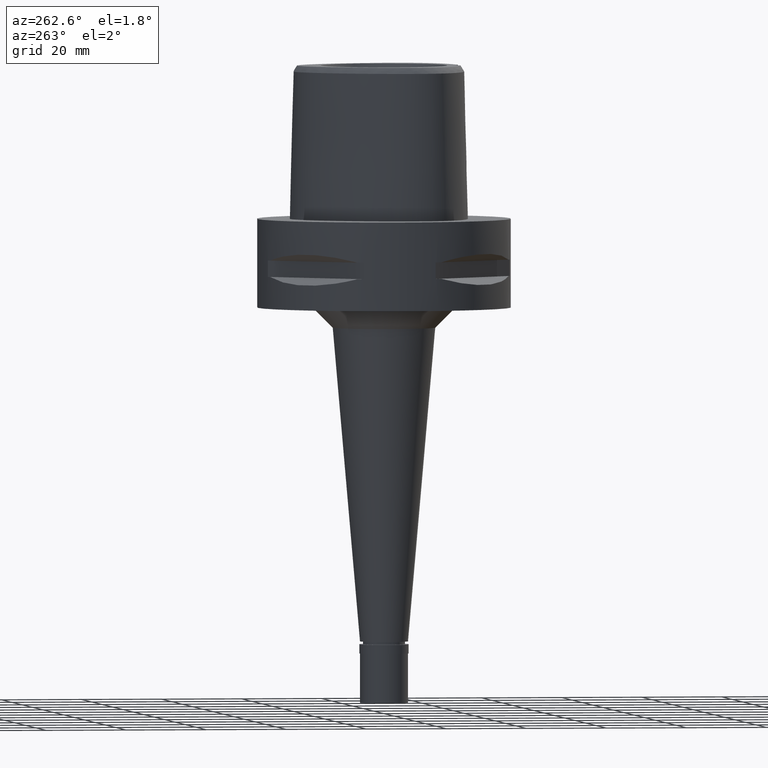
[diagram: clean part render]
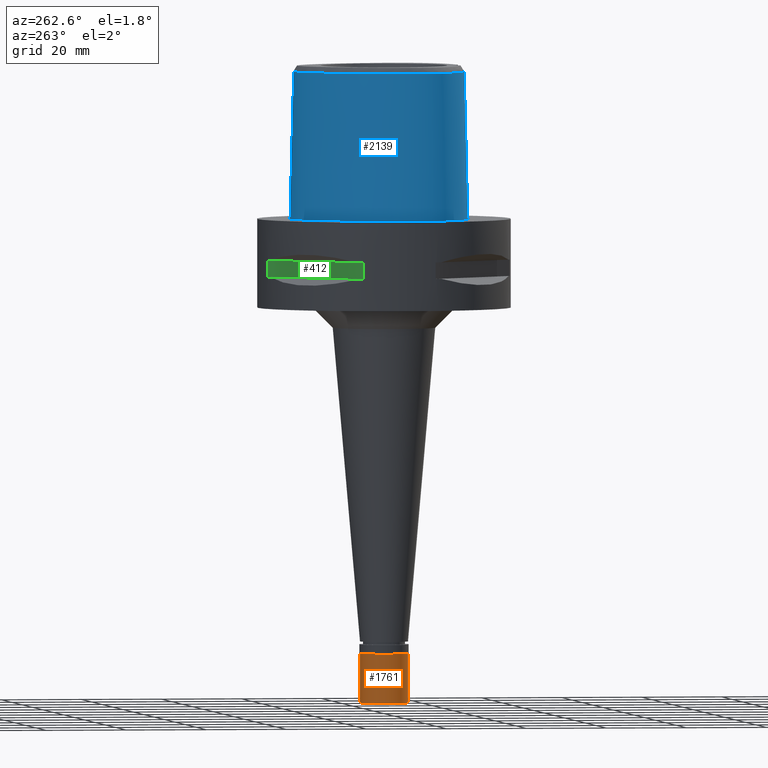
[diagram: same view with three faces highlighted in distinct colors, each labeled with its STEP entity id]
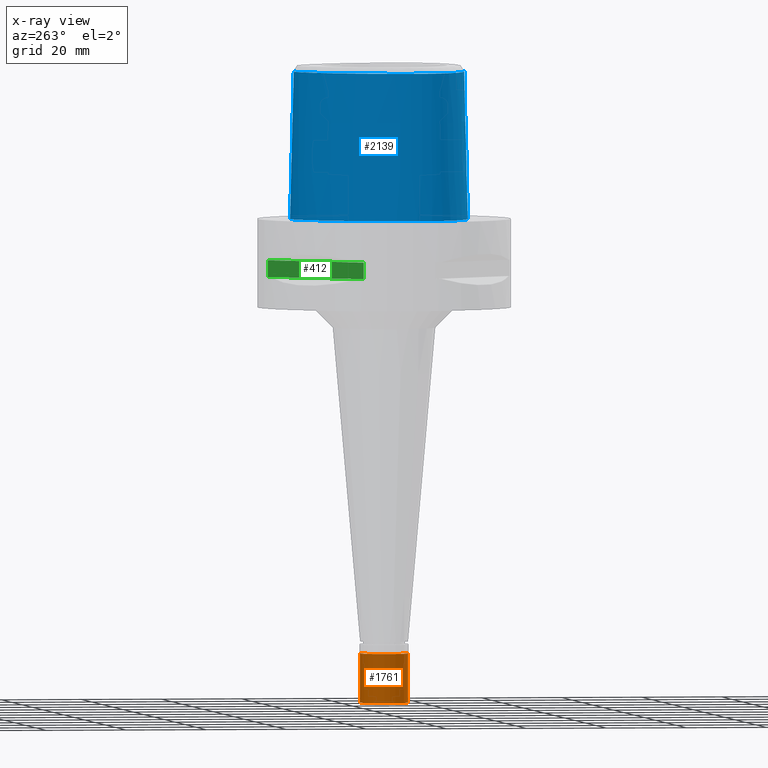
[diagram: x-ray of the same camera — body ghosted, the three highlighted faces saturated]
A machine part, auxiliary view with three faces highlighted in distinct colors.
The next image is the same camera in x-ray (body ghosted, the three faces saturated) — at least one of them is partly hidden behind the body in this view.
Their STEP definitions:

[orange] entity #1761 — the highlighted cylindrical surface (edge-blend (fillet) strip) has radius 6 mm, axis along (0, 0, 1).
#137 = AXIS2_PLACEMENT_3D ( 'NONE', #4320, #3934, #4111 ) ;
#285 = FACE_OUTER_BOUND ( 'NONE', #4383, .T. ) ;
#307 = CARTESIAN_POINT ( 'NONE',  ( 0.0000000000000000000, 0.0000000000000000000, -15.22500000000000142 ) ) ;
#384 = ORIENTED_EDGE ( 'NONE', *, *, #1454, .F. ) ;
#559 = ORIENTED_EDGE ( 'NONE', *, *, #2102, .T. ) ;
#614 = CARTESIAN_POINT ( 'NONE',  ( 0.0000000000000000000, -6.000000000000000000, -14.50000000000000000 ) ) ;
#633 = ORIENTED_EDGE ( 'NONE', *, *, #3242, .T. ) ;
#779 = CIRCLE ( 'NONE', #2061, 6.000000000000000000 ) ;
#958 = CARTESIAN_POINT ( 'NONE',  ( 0.0000000000000000000, 6.000000000000000000, -2.299999999999999822 ) ) ;
#1034 = CARTESIAN_POINT ( 'NONE',  ( 0.0000000000000000000, 0.0000000000000000000, -14.50000000000000000 ) ) ;
#1044 = LINE ( 'NONE', #3724, #3982 ) ;
#1454 = EDGE_CURVE ( 'NONE', #2406, #1461, #1044, .T. ) ;
#1461 = VERTEX_POINT ( 'NONE', #614 ) ;
#1667 = AXIS2_PLACEMENT_3D ( 'NONE', #307, #3383, #4537 ) ;
#1761 = ADVANCED_FACE ( 'NONE', ( #285 ), #3360, .T. ) ;
#1883 = DIRECTION ( 'NONE',  ( 0.0000000000000000000, 0.0000000000000000000, 1.000000000000000000 ) ) ;
#2061 = AXIS2_PLACEMENT_3D ( 'NONE', #1034, #1883, #3009 ) ;
#2102 = EDGE_CURVE ( 'NONE', #3300, #1461, #779, .T. ) ;
#2195 = DIRECTION ( 'NONE',  ( 0.0000000000000000000, 0.0000000000000000000, -1.000000000000000000 ) ) ;
#2406 = VERTEX_POINT ( 'NONE', #3405 ) ;
#2645 = CARTESIAN_POINT ( 'NONE',  ( 0.0000000000000000000, 6.000000000000000000, -2.299999999999999822 ) ) ;
#3009 = DIRECTION ( 'NONE',  ( 0.0000000000000000000, 1.000000000000000000, 0.0000000000000000000 ) ) ;
#3242 = EDGE_CURVE ( 'NONE', #3959, #3300, #4765, .T. ) ;
#3300 = VERTEX_POINT ( 'NONE', #4788 ) ;
#3360 = CYLINDRICAL_SURFACE ( 'NONE', #1667, 6.000000000000000000 ) ;
#3383 = DIRECTION ( 'NONE',  ( 0.0000000000000000000, 0.0000000000000000000, 1.000000000000000000 ) ) ;
#3405 = CARTESIAN_POINT ( 'NONE',  ( 0.0000000000000000000, -6.000000000000000000, -2.299999999999999822 ) ) ;
#3576 = EDGE_CURVE ( 'NONE', #2406, #3959, #3739, .T. ) ;
#3724 = CARTESIAN_POINT ( 'NONE',  ( 0.0000000000000000000, -6.000000000000000000, -2.299999999999999822 ) ) ;
#3739 = CIRCLE ( 'NONE', #137, 6.000000000000000000 ) ;
#3934 = DIRECTION ( 'NONE',  ( 0.0000000000000000000, 0.0000000000000000000, -1.000000000000000000 ) ) ;
#3959 = VERTEX_POINT ( 'NONE', #2645 ) ;
#3966 = DIRECTION ( 'NONE',  ( 0.0000000000000000000, 0.0000000000000000000, -1.000000000000000000 ) ) ;
#3982 = VECTOR ( 'NONE', #2195, 1000.000000000000000 ) ;
#4111 = DIRECTION ( 'NONE',  ( 0.0000000000000000000, -1.000000000000000000, 0.0000000000000000000 ) ) ;
#4203 = ORIENTED_EDGE ( 'NONE', *, *, #3576, .T. ) ;
#4320 = CARTESIAN_POINT ( 'NONE',  ( 0.0000000000000000000, 0.0000000000000000000, -2.299999999999999822 ) ) ;
#4383 = EDGE_LOOP ( 'NONE', ( #559, #384, #4203, #633 ) ) ;
#4537 = DIRECTION ( 'NONE',  ( 0.0000000000000000000, 1.000000000000000000, 0.0000000000000000000 ) ) ;
#4709 = VECTOR ( 'NONE', #3966, 1000.000000000000000 ) ;
#4765 = LINE ( 'NONE', #958, #4709 ) ;
#4788 = CARTESIAN_POINT ( 'NONE',  ( 0.0000000000000000000, 6.000000000000000000, -14.50000000000000000 ) ) ;

[blue] entity #2139 — the highlighted face is a freeform B-spline surface patch.
#5 = CARTESIAN_POINT ( 'NONE',  ( -2.904838724130528238, -20.23782704190019643, 12.67778573503325923 ) ) ;
#7 = CARTESIAN_POINT ( 'NONE',  ( -14.21104783672999972, -16.40237677557000140, 37.25233218388999745 ) ) ;
#19 = CARTESIAN_POINT ( 'NONE',  ( -3.736722311398999796, -19.67781602443999844, 31.80000000000000071 ) ) ;
#32 = CARTESIAN_POINT ( 'NONE',  ( -20.94844326338000329, -10.61175397208999982, -0.7304378859585999306 ) ) ;
#55 = CARTESIAN_POINT ( 'NONE',  ( -1.638635025881027829, -20.34200884320173941, 11.79610711467229756 ) ) ;
#57 = CARTESIAN_POINT ( 'NONE',  ( -21.05621877516999874, -0.4440252184965000071, 37.25233218388999745 ) ) ;
#59 = CARTESIAN_POINT ( 'NONE',  ( -2.564517726952860066, 23.29328124998577465, 7.347650591259247133E-10 ) ) ;
#83 = CARTESIAN_POINT ( 'NONE',  ( -21.44619279148999880, -6.759806530515999334, 24.59140882726999777 ) ) ;
#85 = CARTESIAN_POINT ( 'NONE',  ( -11.23259756726985614, -18.89324218748283712, 7.347650591259247133E-10 ) ) ;
#105 = CARTESIAN_POINT ( 'NONE',  ( -20.07948471750000152, -10.22500054853999885, 37.25233218388999745 ) ) ;
#125 = CARTESIAN_POINT ( 'NONE',  ( -20.09619618740940084, -10.23243843867939340, 36.52186244848000740 ) ) ;
#200 = CARTESIAN_POINT ( 'NONE',  ( -3.736722311398999796, -19.67781602443999844, 31.80000000000000071 ) ) ;
#243 = CARTESIAN_POINT ( 'NONE',  ( -2.095753548415486112, -20.13818364214372991, 18.96577014705825093 ) ) ;
#268 = CARTESIAN_POINT ( 'NONE',  ( -1.435263460281553494, -20.16346600381252685, 19.28743623777711846 ) ) ;
#271 = CARTESIAN_POINT ( 'NONE',  ( -1.012745931301000022E-12, -20.38876923348000147, 11.44999999999999929 ) ) ;
#272 = CARTESIAN_POINT ( 'NONE',  ( 0.4823619559478999896, 23.48603818730000015, -0.7304378859585999306 ) ) ;
#298 = CARTESIAN_POINT ( 'NONE',  ( -2.857836109593855589, -20.09902107152587547, 18.36973246308505736 ) ) ;
#299 = CARTESIAN_POINT ( 'NONE',  ( -10.55288400593000020, 18.94467581227999631, 11.93048547066000076 ) ) ;
#317 = CARTESIAN_POINT ( 'NONE',  ( -2.236225399029314165, -20.13170464962386319, 18.87669531695453529 ) ) ;
#319 = CARTESIAN_POINT ( 'NONE',  ( -13.69241953494999997, 15.03666370049999834, 37.25233218388999745 ) ) ;
#343 = CARTESIAN_POINT ( 'NONE',  ( -2.696415149886732809, -20.10825975497896678, 18.52316981036249999 ) ) ;
#347 = CARTESIAN_POINT ( 'NONE',  ( -19.86834400246999977, 4.339653556557999892, 37.25233218388999745 ) ) ;
#378 = CARTESIAN_POINT ( 'NONE',  ( 0.4520368071170999813, -20.37458452206999837, 11.93048547066000076 ) ) ;
#381 = CARTESIAN_POINT ( 'NONE',  ( 4.706482814907000387E-11, 23.47499999999000053, 4.962696920073999769E-14 ) ) ;
#398 = CARTESIAN_POINT ( 'NONE',  ( -2.647727988181558967, -20.26593689667696196, 12.42012271615970320 ) ) ;
#401 = CARTESIAN_POINT ( 'NONE',  ( 0.6657744271514000056, -19.73734231134000083, 37.25233218388999745 ) ) ;
#455 = CARTESIAN_POINT ( 'NONE',  ( -16.77374378262999954, -15.44292467056000007, 11.93048547066000076 ) ) ;
#457 = CARTESIAN_POINT ( 'NONE',  ( -22.05732874319983239, -6.847636718747089013, 7.347650591259247133E-10 ) ) ;
#480 = CARTESIAN_POINT ( 'NONE',  ( -2.870809693609905011, -20.24156730632681445, 12.64324605246958733 ) ) ;
#482 = CARTESIAN_POINT ( 'NONE',  ( -14.52531259474000080, -16.95413741504999905, 11.93048547066000076 ) ) ;
#500 = CARTESIAN_POINT ( 'NONE',  ( -2.376843896517655264, 22.39422508473721507, 36.52186244848000740 ) ) ;
#529 = CARTESIAN_POINT ( 'NONE',  ( -1.025211814373830022, -20.17465818941732891, 19.42048404905630221 ) ) ;
#579 = VERTEX_POINT ( 'NONE', #3037 ) ;
#584 = EDGE_CURVE ( 'NONE', #3042, #2666, #1082, .T. ) ;
#593 = CARTESIAN_POINT ( 'NONE',  ( -19.55745547456383449, -11.29150218116444471, 36.52186244848000740 ) ) ;
#626 = CARTESIAN_POINT ( 'NONE',  ( -3.744859968340173761, -20.12555785049467261, 13.95773689200766121 ) ) ;
#651 = CARTESIAN_POINT ( 'NONE',  ( -3.765489374954876123, -20.12204791086861988, 14.00864527313976815 ) ) ;
#675 = CARTESIAN_POINT ( 'NONE',  ( -3.466483550462659213, -20.16833646132896618, 13.40542637816798788 ) ) ;
#678 = CARTESIAN_POINT ( 'NONE',  ( -7.580410842770000990, 21.33037926737000234, -0.7304378859585999306 ) ) ;
#704 = CARTESIAN_POINT ( 'NONE',  ( -3.649474620164725458, -20.05281468735653760, 17.25706831815947240 ) ) ;
#705 = CARTESIAN_POINT ( 'NONE',  ( -14.42198652398999847, 15.65278600586999680, -0.7304378859585999306 ) ) ;
#723 = LINE ( 'NONE', #2249, #2865 ) ;
#729 = CARTESIAN_POINT ( 'NONE',  ( -1.517038990521875075, -20.16080850842840277, 19.25515252244656494 ) ) ;
#730 = CARTESIAN_POINT ( 'NONE',  ( -20.46725037016999948, 4.555493622689000155, 11.93048547066000076 ) ) ;
#754 = CARTESIAN_POINT ( 'NONE',  ( -3.377353639917554329, -20.18061854612841444, 13.26476903757175130 ) ) ;
#759 = CARTESIAN_POINT ( 'NONE',  ( -20.74942740878050884, 4.657187499993986179, 7.347650591259247133E-10 ) ) ;
#787 = CARTESIAN_POINT ( 'NONE',  ( -21.13154853910999975, -6.714587027662000551, 37.25233218388999745 ) ) ;
#789 = CARTESIAN_POINT ( 'NONE',  ( -2.113823673062380060, -20.67499999998117133, 7.347650591259247133E-10 ) ) ;
#810 = CARTESIAN_POINT ( 'NONE',  ( -1.975954942320479191, -20.32065689222447702, 11.96260358362910736 ) ) ;
#812 = CARTESIAN_POINT ( 'NONE',  ( -21.94536970905000217, -4.102220499696000111, 11.93048547066000076 ) ) ;
#835 = CARTESIAN_POINT ( 'NONE',  ( -22.07548129623999955, -6.850245536222000275, -0.7304378859585999306 ) ) ;
#867 = CARTESIAN_POINT ( 'NONE',  ( -20.65947724780999906, -8.729764282769000516, 37.25233218388999745 ) ) ;
#871 = ORIENTED_EDGE ( 'NONE', *, *, #584, .F. ) ;
#892 = CARTESIAN_POINT ( 'NONE',  ( -4.467522189394197873, -19.48130287050580733, 36.52186244848000740 ) ) ;
#894 = CARTESIAN_POINT ( 'NONE',  ( -1.886862292503999949, -20.71358860427999815, -0.7304378859585999306 ) ) ;
#934 = CARTESIAN_POINT ( 'NONE',  ( -21.07430010673008880, -0.4408303445193489933, 36.52186244848000740 ) ) ;
#986 = ORIENTED_EDGE ( 'NONE', *, *, #4257, .T. ) ;
#1033 = CARTESIAN_POINT ( 'NONE',  ( -1.944872162942860694, -20.14473830020589418, 19.05307826098233193 ) ) ;
#1056 = CARTESIAN_POINT ( 'NONE',  ( -4.049848995936709883, -20.05861656951258354, 15.25314035240080912 ) ) ;
#1057 = CARTESIAN_POINT ( 'NONE',  ( -0.5657070165967998943, 22.56734877248000259, 37.25233218388999745 ) ) ;
#1080 = CARTESIAN_POINT ( 'NONE',  ( -3.388781880868342089, -20.17907268768858486, 13.28211842289934985 ) ) ;
#1082 = LINE ( 'NONE', #271, #2053 ) ;
#1083 = CARTESIAN_POINT ( 'NONE',  ( -0.6149727129650000013, 23.51889465445000127, -0.7304378859585999306 ) ) ;
#1108 = CARTESIAN_POINT ( 'NONE',  ( -3.538328569017226144, -20.05892019842351459, 17.47427695036759232 ) ) ;
#1110 = CARTESIAN_POINT ( 'NONE',  ( 0.4569144467792000119, 22.85341775699999900, 24.59140882726999777 ) ) ;
#1116 = VERTEX_POINT ( 'NONE', #4243 ) ;
#1131 = CARTESIAN_POINT ( 'NONE',  ( -1.320565687263934196, -20.16697761691574442, 19.32976498246394925 ) ) ;
#1133 = CARTESIAN_POINT ( 'NONE',  ( -21.99640702106000134, -0.2778990153236000071, -0.7304378859585999306 ) ) ;
#1156 = CARTESIAN_POINT ( 'NONE',  ( -3.704239276368590961, -19.64128040965313460, 33.37395414949332917 ) ) ;
#1161 = CARTESIAN_POINT ( 'NONE',  ( -1.870070487617999877, -20.39691384200000002, 11.93048547066000076 ) ) ;
#1163 = CARTESIAN_POINT ( 'NONE',  ( -18.56841065140642044, -14.16937988280366234, 7.347650591259247133E-10 ) ) ;
#1174 = CARTESIAN_POINT ( 'NONE',  ( -3.637738201363999835, -19.56971413236999879, 36.52186244848000030 ) ) ;
#1194 = CARTESIAN_POINT ( 'NONE',  ( -20.96392229773999816, -8.820258254065999282, 24.59140882726999777 ) ) ;
#1214 = CARTESIAN_POINT ( 'NONE',  ( -0.5047993657361153907, -20.38876923347999437, 11.44999999999999751 ) ) ;
#1216 = CARTESIAN_POINT ( 'NONE',  ( -6.232237553020000043, -19.68961162268999843, 24.59140882726999777 ) ) ;
#1237 = CARTESIAN_POINT ( 'NONE',  ( -3.024127618931546468, -20.22444760029573629, 12.80466032897815865 ) ) ;
#1241 = CARTESIAN_POINT ( 'NONE',  ( -19.40779762576999801, -12.64961922872999978, 11.93048547066000076 ) ) ;
#1272 = CARTESIAN_POINT ( 'NONE',  ( -20.09084467297000032, -11.59945457961999971, 11.93048547066000076 ) ) ;
#1294 = CARTESIAN_POINT ( 'NONE',  ( -0.5036866637171770744, -20.18406862059044116, 19.52728785670067069 ) ) ;
#1310 = CARTESIAN_POINT ( 'NONE',  ( -3.637738201363999835, -19.56971413236999879, 36.52186244848000030 ) ) ;
#1334 = CARTESIAN_POINT ( 'NONE',  ( -17.27359245833669377, 9.972912913898941412, 36.52186244848000740 ) ) ;
#1372 = VERTEX_POINT ( 'NONE', #1421 ) ;
#1407 = CARTESIAN_POINT ( 'NONE',  ( -2.004675599397375496, -20.14220382833321565, 19.01976680092955974 ) ) ;
#1421 = CARTESIAN_POINT ( 'NONE',  ( 2.041043315709000034E-08, -19.88004246002000031, 31.80000004972000127 ) ) ;
#1433 = CARTESIAN_POINT ( 'NONE',  ( -3.952964639653347323, -20.08622609015276339, 14.60890045234538093 ) ) ;
#1434 = CARTESIAN_POINT ( 'NONE',  ( -2.503210888877999807, 22.99958931323000044, 11.93048547066000076 ) ) ;
#1437 = ORIENTED_EDGE ( 'NONE', *, *, #4816, .F. ) ;
#1444 = CARTESIAN_POINT ( 'NONE',  ( -8.162744946017001396E-12, -20.67499999999999716, 5.255055649891999731E-14 ) ) ;
#1452 = CARTESIAN_POINT ( 'NONE',  ( -3.408875187839096821, -20.17633333107677984, 13.31312751174674069 ) ) ;
#1477 = CARTESIAN_POINT ( 'NONE',  ( -2.781497320422408492, -20.10345565782000321, 18.44409576489663749 ) ) ;
#1481 = CARTESIAN_POINT ( 'NONE',  ( 0.6850313999757000616, 22.83959031206000034, 24.59140882726999777 ) ) ;
#1508 = CARTESIAN_POINT ( 'NONE',  ( -2.841055161940101659, -20.10000556631496949, 18.38634273632133898 ) ) ;
#1510 = CARTESIAN_POINT ( 'NONE',  ( -2.568271206838999898, 23.31126238898999858, -0.7304378859585999306 ) ) ;
#1530 = CARTESIAN_POINT ( 'NONE',  ( -3.637738201363999835, -19.56971413236999879, 36.52186244848000030 ) ) ;
#1533 = CARTESIAN_POINT ( 'NONE',  ( -2.086814383484239865, -20.31269213283787067, 12.02647857460027403 ) ) ;
#1535 = CARTESIAN_POINT ( 'NONE',  ( 0.4479792471558999289, -20.05810135420000151, 24.59140882726999777 ) ) ;
#1537 = CARTESIAN_POINT ( 'NONE',  ( -20.34961798555715617, -11.74885742186002169, 7.347650591259247133E-10 ) ) ;
#1563 = CARTESIAN_POINT ( 'NONE',  ( -19.66427015045000104, -12.83600704977000007, -0.7304378859585999306 ) ) ;
#1591 = CARTESIAN_POINT ( 'NONE',  ( -19.54161151971000265, -11.28235466953000099, 37.25233218388999745 ) ) ;
#1593 = CARTESIAN_POINT ( 'NONE',  ( -7.571159434341598882, 21.31457031248315559, 7.347650591259247133E-10 ) ) ;
#1617 = CARTESIAN_POINT ( 'NONE',  ( -21.57281239758999902, -9.001246196662000543, -0.7304378859585999306 ) ) ;
#1643 = CARTESIAN_POINT ( 'NONE',  ( -17.88993632268000056, -13.52674998387000116, 37.25233218388999745 ) ) ;
#1690 = CARTESIAN_POINT ( 'NONE',  ( -20.67704215115907473, -8.734985316449373371, 36.52186244848000740 ) ) ;
#1691 = VERTEX_POINT ( 'NONE', #19 ) ;
#1713 = CARTESIAN_POINT ( 'NONE',  ( 2.041043315709000034E-08, -19.88004246002000031, 31.80000004972000127 ) ) ;
#1780 = CARTESIAN_POINT ( 'NONE',  ( -1.492522727677753736, -20.16161937968068685, 19.26502569009171495 ) ) ;
#1787 = ORIENTED_EDGE ( 'NONE', *, *, #2161, .F. ) ;
#1803 = CARTESIAN_POINT ( 'NONE',  ( -2.360389010896108530, -20.12578017861199697, 18.79373387523267169 ) ) ;
#1805 = CARTESIAN_POINT ( 'NONE',  ( -0.5985508141755999656, 23.20171269380000112, 11.93048547066000076 ) ) ;
#1832 = CARTESIAN_POINT ( 'NONE',  ( -3.646271025734318272, -20.14180172669107094, 13.73229968882496266 ) ) ;
#1836 = CARTESIAN_POINT ( 'NONE',  ( -10.34823227036999960, 18.70095486306000154, 24.59140882726999777 ) ) ;
#1841 = ORIENTED_EDGE ( 'NONE', *, *, #3547, .T. ) ;
#1858 = CARTESIAN_POINT ( 'NONE',  ( -1.533377486143957524, -20.16026360294687692, 19.24851053761187814 ) ) ;
#1860 = CARTESIAN_POINT ( 'NONE',  ( -17.80867301275000258, 10.28184204616999864, 11.93048547066000076 ) ) ;
#1882 = CARTESIAN_POINT ( 'NONE',  ( -2.218923952798445232, -20.13252298611794444, 18.88809933006757547 ) ) ;
#1913 = CARTESIAN_POINT ( 'NONE',  ( -2.887412005236638546, -20.23974548682332752, 12.66003157092715981 ) ) ;
#1915 = CARTESIAN_POINT ( 'NONE',  ( -18.89485257639999816, -12.27684358665000097, 37.25233218388999745 ) ) ;
#1917 = CARTESIAN_POINT ( 'NONE',  ( -22.24453907853138546, -4.100468749999531148, 7.347650591259247133E-10 ) ) ;
#1919 = B_SPLINE_CURVE_WITH_KNOTS ( 'NONE', 3,
 ( #1530, #4596, #1156, #4216 ),
 .UNSPECIFIED., .F., .F.,
 ( 4, 4 ),
 ( 0.0000000000000000000, 1.000000000000000000 ),
 .UNSPECIFIED. ) ;
#1955 = CARTESIAN_POINT ( 'NONE',  ( -1.012745931301000022E-12, -20.38876923348000147, 11.44999999999999929 ) ) ;
#1988 = CARTESIAN_POINT ( 'NONE',  ( -20.65879041474999767, -10.48283616424000009, 11.93048547066000076 ) ) ;
#1990 = CARTESIAN_POINT ( 'NONE',  ( -20.93173252209609458, -10.60431640624502059, 7.347650591259247133E-10 ) ) ;
#2011 = CARTESIAN_POINT ( 'NONE',  ( -3.294464282140110001, -20.19175818983389803, 13.14063372506771721 ) ) ;
#2014 = CARTESIAN_POINT ( 'NONE',  ( -22.26285557055999931, -4.100361500018000704, -0.7304378859585999306 ) ) ;
#2015 = CARTESIAN_POINT ( 'NONE',  ( -2.503154198992826540, -19.81241979316159885, 31.80000012753032124 ) ) ;
#2032 = CARTESIAN_POINT ( 'NONE',  ( -16.39211280191441489, -14.95758113318704652, 36.52186244848000740 ) ) ;
#2053 = VECTOR ( 'NONE', #4143, 1000.000000000000114 ) ;
#2087 = CARTESIAN_POINT ( 'NONE',  ( -7.300578999876284669, -19.07170748891975265, 36.52186244848000740 ) ) ;
#2129 = CARTESIAN_POINT ( 'NONE',  ( -21.14970188364185333, -6.717195958887213436, 36.52186244848000740 ) ) ;
#2139 = ADVANCED_FACE ( 'NONE', ( #3818 ), #2520, .T. ) ;
#2160 = CARTESIAN_POINT ( 'NONE',  ( -3.623054736487676841, -20.05423874947265972, 17.31100359226129015 ) ) ;
#2161 = EDGE_CURVE ( 'NONE', #1372, #579, #4172, .T. ) ;
#2183 = CARTESIAN_POINT ( 'NONE',  ( -3.740129524197062683, -20.04822853724960297, 17.05370687142093544 ) ) ;
#2206 = CARTESIAN_POINT ( 'NONE',  ( -3.438474045104603416, -20.17226853617658833, 13.35950353182799688 ) ) ;
#2208 = CARTESIAN_POINT ( 'NONE',  ( -7.259695350907000133, 20.78233549852000195, 24.59140882726999777 ) ) ;
#2233 = CARTESIAN_POINT ( 'NONE',  ( -2.467128207641373194, -20.12044499744988713, 18.71456023907627397 ) ) ;
#2234 = CARTESIAN_POINT ( 'NONE',  ( -14.17879752763999868, 15.44741190407999909, 11.93048547066000076 ) ) ;
#2249 = CARTESIAN_POINT ( 'NONE',  ( -1.709898365991000259E-11, 22.56201468012000078, 36.52186680743999858 ) ) ;
#2255 = CARTESIAN_POINT ( 'NONE',  ( -3.732557508992317974, -20.04859144260166559, 17.07180291400139893 ) ) ;
#2257 = CARTESIAN_POINT ( 'NONE',  ( -20.16779718631999785, 4.447573589623000423, 24.59140882726999777 ) ) ;
#2281 = CARTESIAN_POINT ( 'NONE',  ( -1.012745931301000022E-12, -20.38876923348000147, 11.44999999999999929 ) ) ;
#2286 = CARTESIAN_POINT ( 'NONE',  ( 4.706482814907000387E-11, 23.47499999999000053, 4.962696920073999769E-14 ) ) ;
#2316 = CARTESIAN_POINT ( 'NONE',  ( 0.4439216871946000120, -19.74161818632000021, 37.25233218388999745 ) ) ;
#2318 = CARTESIAN_POINT ( 'NONE',  ( -8.162744946017001396E-12, -20.67499999999999716, 5.255055649891999731E-14 ) ) ;
#2335 = CARTESIAN_POINT ( 'NONE',  ( -1.758544761758017216, -20.33485355119073290, 11.85123508316510232 ) ) ;
#2337 = CARTESIAN_POINT ( 'NONE',  ( -11.23887130429999992, -18.91049776501999702, -0.7304378859585999306 ) ) ;
#2364 = CARTESIAN_POINT ( 'NONE',  ( -20.36546124961000004, -11.75800453465999951, -0.7304378859585999306 ) ) ;
#2366 = CARTESIAN_POINT ( 'NONE',  ( -14.40795638957108160, 15.64093749998558103, 7.347650591259247133E-10 ) ) ;
#2395 = CARTESIAN_POINT ( 'NONE',  ( -18.58171406963000294, -14.18198046906999998, -0.7304378859585999306 ) ) ;
#2401 = VERTEX_POINT ( 'NONE', #1174 ) ;
#2420 = CARTESIAN_POINT ( 'NONE',  ( -10.91891098964903506, -18.03046406390872392, 36.52186244848000740 ) ) ;
#2422 = CARTESIAN_POINT ( 'NONE',  ( 0.4560943670782999781, -20.69106768994999968, -0.7304378859585999306 ) ) ;
#2466 = CARTESIAN_POINT ( 'NONE',  ( -10.15538788053308927, 18.47129535094024178, 36.52186244848000740 ) ) ;
#2520 = B_SPLINE_SURFACE_WITH_KNOTS ( 'NONE', 3, 3, ( 
 ( #4192, #4525, #1481, #3713 ),
 ( #272, #3349, #1110, #4943 ),
 ( #1083, #1805, #4870, #1057 ),
 ( #1510, #1434, #3372, #2962 ),
 ( #4502, #2583, #3417, #4116 ),
 ( #678, #4144, #2208, #3741 ),
 ( #3788, #299, #1836, #2608 ),
 ( #705, #2234, #3766, #319 ),
 ( #4578, #1860, #3397, #2633 ),
 ( #4167, #730, #2257, #347 ),
 ( #1133, #4275, #3548, #57 ),
 ( #2014, #812, #2684, #4301 ),
 ( #835, #3121, #83, #787 ),
 ( #1617, #3146, #1194, #867 ),
 ( #32, #1988, #4673, #105 ),
 ( #2364, #1272, #3526, #1591 ),
 ( #1563, #1241, #2767, #1915 ),
 ( #2395, #3444, #3093, #1643 ),
 ( #3894, #455, #3923, #4224 ),
 ( #4251, #482, #4652, #7 ),
 ( #2337, #4699, #2714, #3172 ),
 ( #2799, #4330, #1216, #4628 ),
 ( #894, #1161, #2739, #3065 ),
 ( #2422, #378, #1535, #2316 ),
 ( #4599, #3848, #3872, #401 ) ),
 .UNSPECIFIED., .F., .F., .F.,
 ( 4, 1, 1, 1, 1, 1, 1, 1, 1, 1, 1, 1, 1, 1, 1, 1, 1, 1, 1, 1, 1, 1, 4 ),
 ( 4, 4 ),
 ( -0.01173777939047000035, 0.0000000000000000000, 0.04166666666739000241, 0.08333333333401000964, 0.1250000000005999923, 0.1666666666673000119, 0.2500000000004999889, 0.3333333333337000215, 0.4166666666671000052, 0.5000000000002999823, 0.5416666666668999985, 0.5833333333335000148, 0.6250000000001999512, 0.6458333333333999837, 0.6666666666667999674, 0.6875000000001000311, 0.7083333333333999837, 0.7500000000000000000, 0.7916666666667000474, 0.8333333333332000326, 0.9166666666666000163, 1.000000000000000000, 1.008985696609000060 ),
 ( -4.039494391761000098E-09, 1.000000206013999859 ),
 .UNSPECIFIED. ) ;
#2560 = CARTESIAN_POINT ( 'NONE',  ( -3.862607746707916956, -20.10460055501049936, 14.28038032247703804 ) ) ;
#2581 = CARTESIAN_POINT ( 'NONE',  ( -3.553766165189451876, -20.15576042538055646, 13.55638603653808438 ) ) ;
#2583 = CARTESIAN_POINT ( 'NONE',  ( -4.987110638425000353, 22.24795273319000088, 11.93048547066000076 ) ) ;
#2605 = CARTESIAN_POINT ( 'NONE',  ( -2.141634863660086818, -20.13611892945386828, 18.93776449056595368 ) ) ;
#2608 = CARTESIAN_POINT ( 'NONE',  ( -10.14358053481999988, 18.45723391385000056, 37.25233218388999745 ) ) ;
#2632 = CARTESIAN_POINT ( 'NONE',  ( -3.686560471766451297, -20.05088322548360935, 17.17709135335128678 ) ) ;
#2633 = CARTESIAN_POINT ( 'NONE',  ( -17.25769826292999909, 9.963736389065999788, 37.25233218388999745 ) ) ;
#2656 = CARTESIAN_POINT ( 'NONE',  ( -3.755562140676109273, -20.12374194796075244, 13.98397501488328487 ) ) ;
#2666 = VERTEX_POINT ( 'NONE', #1444 ) ;
#2684 = CARTESIAN_POINT ( 'NONE',  ( -21.62788384754000148, -4.104079499373999518, 24.59140882726999777 ) ) ;
#2686 = CARTESIAN_POINT ( 'NONE',  ( -14.67337964418262430, -17.21410156248130363, 7.347650591259247133E-10 ) ) ;
#2712 = CARTESIAN_POINT ( 'NONE',  ( -2.421503357515921273, -20.28648737493542953, 12.24279215510435392 ) ) ;
#2714 = CARTESIAN_POINT ( 'NONE',  ( -11.02138175414999921, -18.31230441099999950, 24.59140882726999777 ) ) ;
#2739 = CARTESIAN_POINT ( 'NONE',  ( -1.853278682732999894, -20.08023907971999833, 24.59140882726999777 ) ) ;
#2741 = CARTESIAN_POINT ( 'NONE',  ( -5.098437017276705063, 22.52602539061479803, 7.347650591259247133E-10 ) ) ;
#2764 = CARTESIAN_POINT ( 'NONE',  ( -3.215358272889146996, -20.20174660046220438, 13.03391498473979482 ) ) ;
#2767 = CARTESIAN_POINT ( 'NONE',  ( -19.15132510108000119, -12.46323140768999949, 24.59140882726999777 ) ) ;
#2769 = CARTESIAN_POINT ( 'NONE',  ( -21.97832647785125104, -0.2810937500032186787, 7.347650591259247133E-10 ) ) ;
#2799 = CARTESIAN_POINT ( 'NONE',  ( -6.344715577614000068, -20.31619965477999656, -0.7304378859585999306 ) ) ;
#2826 = CARTESIAN_POINT ( 'NONE',  ( -0.8941136475690105723, -20.17742596329177118, 19.45229334933715037 ) ) ;
#2864 = CARTESIAN_POINT ( 'NONE',  ( -7.108589416785442872, 20.52412325828244377, 36.52186244848000740 ) ) ;
#2865 = VECTOR ( 'NONE', #4432, 999.9999999999998863 ) ;
#2891 = VERTEX_POINT ( 'NONE', #381 ) ;
#2934 = CARTESIAN_POINT ( 'NONE',  ( -4.049663826248578680, -20.05088590019596495, 15.56119206774391728 ) ) ;
#2961 = CARTESIAN_POINT ( 'NONE',  ( -3.698122373996028056, -20.13343971460527371, 13.84482020457140372 ) ) ;
#2962 = CARTESIAN_POINT ( 'NONE',  ( -2.373090252956000068, 22.37624316171999794, 37.25233218388999745 ) ) ;
#2983 = CARTESIAN_POINT ( 'NONE',  ( -4.050018014422827051, -20.05167593066967768, 15.52805627100676666 ) ) ;
#3007 = CARTESIAN_POINT ( 'NONE',  ( -1.656252726933860497, -20.15609978928644708, 19.19765142506289024 ) ) ;
#3021 = EDGE_CURVE ( 'NONE', #579, #3042, #4470, .T. ) ;
#3036 = CARTESIAN_POINT ( 'NONE',  ( -3.921269265893149392, -20.09311890564209335, 14.47775228282051785 ) ) ;
#3037 = CARTESIAN_POINT ( 'NONE',  ( 0.0000000000000000000, -20.18628283968999781, 19.55000000000000071 ) ) ;
#3042 = VERTEX_POINT ( 'NONE', #1955 ) ;
#3063 = CARTESIAN_POINT ( 'NONE',  ( -2.945118222698875243, -20.23335776653538076, 12.71958560101227675 ) ) ;
#3065 = CARTESIAN_POINT ( 'NONE',  ( -1.836486877847000043, -19.76356431744000020, 37.25233218388999745 ) ) ;
#3093 = CARTESIAN_POINT ( 'NONE',  ( -18.12052890500000046, -13.74516014559999988, 24.59140882726999777 ) ) ;
#3121 = CARTESIAN_POINT ( 'NONE',  ( -21.76083704386000051, -6.805026033369000693, 11.93048547066000076 ) ) ;
#3123 = CARTESIAN_POINT ( 'NONE',  ( -10.74572891058043389, 19.17433593748296516, 7.347650591259247133E-10 ) ) ;
#3143 = CARTESIAN_POINT ( 'NONE',  ( -1.554881956814054167, -20.34669101429741644, 11.76035872672055405 ) ) ;
#3146 = CARTESIAN_POINT ( 'NONE',  ( -21.26836734765999992, -8.910752225363999912, 11.93048547066000076 ) ) ;
#3172 = CARTESIAN_POINT ( 'NONE',  ( -10.91263697907000108, -18.01320773399000075, 37.25233218388999745 ) ) ;
#3173 = CARTESIAN_POINT ( 'NONE',  ( -1.251533273949680725, -19.88005341379885138, 31.80000012753032124 ) ) ;
#3183 = EDGE_CURVE ( 'NONE', #2401, #1116, #4177, .T. ) ;
#3231 = B_SPLINE_CURVE_WITH_KNOTS ( 'NONE', 3,
 ( #4395, #3173, #2015, #200 ),
 .UNSPECIFIED., .F., .F.,
 ( 4, 4 ),
 ( 0.0000000000000000000, 1.000000000000000000 ),
 .UNSPECIFIED. ) ;
#3239 = CARTESIAN_POINT ( 'NONE',  ( -19.88562090098784552, 4.345879983792252155, 36.52186244848000740 ) ) ;
#3316 = CARTESIAN_POINT ( 'NONE',  ( -3.738021026996091400, -20.04832921641904164, 17.05876513950412132 ) ) ;
#3345 = CARTESIAN_POINT ( 'NONE',  ( -3.258446753597225687, -20.07522384658253145, 17.91983021282740296 ) ) ;
#3349 = CARTESIAN_POINT ( 'NONE',  ( 0.4696382013634999852, 23.16972797214999957, 11.93048547066000076 ) ) ;
#3371 = CARTESIAN_POINT ( 'NONE',  ( -4.048193638326634591, -20.04945813671655941, 15.62509932610855046 ) ) ;
#3372 = CARTESIAN_POINT ( 'NONE',  ( -2.438150570916999715, 22.68791623747999964, 24.59140882726999777 ) ) ;
#3394 = CARTESIAN_POINT ( 'NONE',  ( -1.543048130368000814, -20.15993798682087501, 19.24453660914122466 ) ) ;
#3397 = CARTESIAN_POINT ( 'NONE',  ( -17.53318563783999906, 10.12278921761999939, 24.59140882726999777 ) ) ;
#3416 = CARTESIAN_POINT ( 'NONE',  ( -4.044848056825181004, -20.04744994058544805, 15.72117637687658487 ) ) ;
#3417 = CARTESIAN_POINT ( 'NONE',  ( -4.868968358821000209, 21.95285521916999727, 24.59140882726999777 ) ) ;
#3444 = CARTESIAN_POINT ( 'NONE',  ( -18.35112148731999682, -13.96357030734000126, 11.93048547066000076 ) ) ;
#3464 = CARTESIAN_POINT ( 'NONE',  ( -1.572984596546468605, -20.34569619827464138, 11.76794029728010571 ) ) ;
#3498 = CARTESIAN_POINT ( 'NONE',  ( -0.8548392423018421615, 23.47499999998087361, 7.347650591259247133E-10 ) ) ;
#3526 = CARTESIAN_POINT ( 'NONE',  ( -19.81622809634000149, -11.44090462456999902, 24.59140882726999777 ) ) ;
#3528 = CARTESIAN_POINT ( 'NONE',  ( -16.95889172592302785, -15.67838867185974649, 7.347650591259247133E-10 ) ) ;
#3547 = EDGE_CURVE ( 'NONE', #1116, #2891, #723, .T. ) ;
#3548 = CARTESIAN_POINT ( 'NONE',  ( -21.36961485712999931, -0.3886498174389000360, 24.59140882726999777 ) ) ;
#3600 = CARTESIAN_POINT ( 'NONE',  ( -1.222079501486517117, -20.16967619644332999, 19.36182732690829056 ) ) ;
#3616 = CARTESIAN_POINT ( 'NONE',  ( -1.709898365991000259E-11, 22.56201468012000078, 36.52186680743999858 ) ) ;
#3634 = CARTESIAN_POINT ( 'NONE',  ( -14.22011356156590800, -16.41829364185921136, 36.52186244848000740 ) ) ;
#3638 = CARTESIAN_POINT ( 'NONE',  ( 6.820786351233307322E-09, -19.98212988583257754, 27.71666688228241426 ) ) ;
#3687 = CARTESIAN_POINT ( 'NONE',  ( -3.704467467890661503, -20.04996865237247405, 17.13733399074659047 ) ) ;
#3710 = CARTESIAN_POINT ( 'NONE',  ( -4.001055636221527045, -20.04208398455001472, 16.14154222851098197 ) ) ;
#3713 = CARTESIAN_POINT ( 'NONE',  ( 0.6658292772506999579, 22.52368250217999801, 37.25233218388999745 ) ) ;
#3722 = EDGE_CURVE ( 'NONE', #1372, #1691, #3231, .T. ) ;
#3738 = CARTESIAN_POINT ( 'NONE',  ( -3.081149392586688851, -20.08583124627708827, 18.14629112889551976 ) ) ;
#3741 = CARTESIAN_POINT ( 'NONE',  ( -7.099337604974999216, 20.50831361408999953, 37.25233218388999745 ) ) ;
#3765 = CARTESIAN_POINT ( 'NONE',  ( -2.852856104013965055, -20.09931387729058727, 18.37467926462966261 ) ) ;
#3766 = CARTESIAN_POINT ( 'NONE',  ( -13.93560853129000066, 15.24203780228999960, 24.59140882726999777 ) ) ;
#3787 = CARTESIAN_POINT ( 'NONE',  ( -3.848403410414041215, -20.04310851184403219, 16.79149714036952901 ) ) ;
#3788 = CARTESIAN_POINT ( 'NONE',  ( -10.75753574149000080, 19.18839676149000084, -0.7304378859585999306 ) ) ;
#3818 = FACE_OUTER_BOUND ( 'NONE', #4454, .T. ) ;
#3820 = CARTESIAN_POINT ( 'NONE',  ( -21.55524826007638595, -8.996025390620326689, 7.347650591259247133E-10 ) ) ;
#3845 = CARTESIAN_POINT ( 'NONE',  ( -1.678454493307345308, -20.33967188085937394, 11.81405957885177749 ) ) ;
#3848 = CARTESIAN_POINT ( 'NONE',  ( 0.6779535326890999691, -20.37023514047000106, 11.93048547066000076 ) ) ;
#3870 = CARTESIAN_POINT ( 'NONE',  ( -1.035503054988129001, -20.37488775911047867, 11.54570873334600734 ) ) ;
#3872 = CARTESIAN_POINT ( 'NONE',  ( 0.6718639799201999718, -20.05378872589999872, 24.59140882726999777 ) ) ;
#3892 = CARTESIAN_POINT ( 'NONE',  ( -2.875757950342948011, -20.24102512592659764, 12.64823125461504993 ) ) ;
#3894 = CARTESIAN_POINT ( 'NONE',  ( -16.97022731430000064, -15.69280483522000225, -0.7304378859585999306 ) ) ;
#3922 = CARTESIAN_POINT ( 'NONE',  ( -1.559921522266873417, -20.34641501697878851, 11.76246137009839110 ) ) ;
#3923 = CARTESIAN_POINT ( 'NONE',  ( -16.57726025095999844, -15.19304450591000055, 24.59140882726999777 ) ) ;
#3943 = CARTESIAN_POINT ( 'NONE',  ( -21.32871527669840361, -4.105831244394130941, 36.52186244848000740 ) ) ;
#3993 = CARTESIAN_POINT ( 'NONE',  ( -4.757642277158672606, 21.67478330407624654, 36.52186244848000740 ) ) ;
#4014 = CARTESIAN_POINT ( 'NONE',  ( 0.0000000000000000000, -20.18628283968999781, 19.55000000000000071 ) ) ;
#4034 = CARTESIAN_POINT ( 'NONE',  ( -18.90964971338330614, -12.28759719904332570, 36.52186244848000740 ) ) ;
#4051 = ORIENTED_EDGE ( 'NONE', *, *, #3021, .F. ) ;
#4070 = CARTESIAN_POINT ( 'NONE',  ( -0.2473412322738156865, -20.18628283969000492, 19.55000000000000071 ) ) ;
#4092 = CARTESIAN_POINT ( 'NONE',  ( -3.830499027173158932, -20.11062698622830425, 14.18153512548522599 ) ) ;
#4102 = ORIENTED_EDGE ( 'NONE', *, *, #3722, .T. ) ;
#4114 = CARTESIAN_POINT ( 'NONE',  ( -3.520475119310722434, -20.16064927170383925, 13.49656734929151192 ) ) ;
#4116 = CARTESIAN_POINT ( 'NONE',  ( -4.750826079217000952, 21.65775770515999810, 37.25233218388999745 ) ) ;
#4141 = CARTESIAN_POINT ( 'NONE',  ( -3.748882549355402105, -20.12487725615829959, 13.96753193210546762 ) ) ;
#4143 = DIRECTION ( 'NONE',  ( -6.242590381494819387E-13, -0.02499051295389925070, -0.9996876883618708298 ) ) ;
#4144 = CARTESIAN_POINT ( 'NONE',  ( -7.420053096839000162, 21.05635738293999992, 11.93048547066000076 ) ) ;
#4166 = CARTESIAN_POINT ( 'NONE',  ( -4.019649019920358946, -20.04316019033579011, 16.01163126936914338 ) ) ;
#4167 = CARTESIAN_POINT ( 'NONE',  ( -20.76670355402000112, 4.663413655753999798, -0.7304378859585999306 ) ) ;
#4172 = B_SPLINE_CURVE_WITH_KNOTS ( 'NONE', 3,
 ( #1713, #3638, #4349, #4014 ),
 .UNSPECIFIED., .F., .F.,
 ( 4, 4 ),
 ( 0.0000000000000000000, 1.000000000000000000 ),
 .UNSPECIFIED. ) ;
#4177 = B_SPLINE_CURVE_WITH_KNOTS ( 'NONE', 3,
 ( #1310, #892, #2087, #2420, #3634, #2032, #4808, #4034, #593, #125, #1690, #2129, #3943, #934, #3239, #1334, #4369, #2466, #2864, #3993, #500, #4392, #3616 ),
 .UNSPECIFIED., .F., .F.,
 ( 4, 1, 1, 1, 1, 1, 1, 1, 1, 1, 1, 1, 1, 1, 1, 1, 1, 1, 1, 1, 4 ),
 ( 0.0000000000000000000, 0.03580973941714645642, 0.1234633994702096227, 0.1672902294965308290, 0.2111170595230624780, 0.2549438895494888779, 0.2768573045627020224, 0.2987707195759153334, 0.3206841345892336714, 0.3425975496023417333, 0.3864243796288732713, 0.4302512096552996712, 0.4740780396817261266, 0.5617316997345789265, 0.6493853597876420025, 0.7370390198404948023, 0.8246926798933477132, 0.8685195099198793622, 0.9123463399462951040, 0.9561731699727425982, 1.000000000000000000 ),
 .UNSPECIFIED. ) ;
#4190 = CARTESIAN_POINT ( 'NONE',  ( -1.592612062489078273, -20.34460894490689853, 11.77623291200229261 ) ) ;
#4192 = CARTESIAN_POINT ( 'NONE',  ( 0.7234356454258000779, 23.47140593183999968, -0.7304378859585999306 ) ) ;
#4216 = CARTESIAN_POINT ( 'NONE',  ( -3.736722311398999796, -19.67781602443999844, 31.80000000000000071 ) ) ;
#4224 = CARTESIAN_POINT ( 'NONE',  ( -16.38077671928000001, -14.94316434125000015, 37.25233218388999745 ) ) ;
#4243 = CARTESIAN_POINT ( 'NONE',  ( -1.709898365991000259E-11, 22.56201468012000078, 36.52186680743999858 ) ) ;
#4251 = CARTESIAN_POINT ( 'NONE',  ( -14.68244497375000002, -17.23001773479000320, -0.7304378859585999306 ) ) ;
#4257 = EDGE_CURVE ( 'NONE', #2891, #2666, #4551, .T. ) ;
#4275 = CARTESIAN_POINT ( 'NONE',  ( -21.68301093908999988, -0.3332744163813000648, 11.93048547066000076 ) ) ;
#4299 = CARTESIAN_POINT ( 'NONE',  ( -1.812541018812429128, -20.33144879143307904, 11.87771303037970405 ) ) ;
#4301 = CARTESIAN_POINT ( 'NONE',  ( -21.31039798602999724, -4.105938499051998924, 37.25233218388999745 ) ) ;
#4303 = CARTESIAN_POINT ( 'NONE',  ( -6.341471019208910320, -20.29812499998974218, 7.347650591259247133E-10 ) ) ;
#4305 = ORIENTED_EDGE ( 'NONE', *, *, #3183, .T. ) ;
#4330 = CARTESIAN_POINT ( 'NONE',  ( -6.288476565317000500, -20.00290563873000238, 11.93048547066000076 ) ) ;
#4349 = CARTESIAN_POINT ( 'NONE',  ( 6.840738706128241285E-09, -20.08420636276145999, 23.63333344114117551 ) ) ;
#4353 = CARTESIAN_POINT ( 'NONE',  ( 0.0000000000000000000, -20.18628283968999781, 19.55000000000000071 ) ) ;
#4369 = CARTESIAN_POINT ( 'NONE',  ( -13.70645028111341901, 15.04851272300562748, 36.52186244848000740 ) ) ;
#4392 = CARTESIAN_POINT ( 'NONE',  ( -0.7901461696976236349, 22.56201478746444167, 36.52186244848000740 ) ) ;
#4395 = CARTESIAN_POINT ( 'NONE',  ( 2.041043315709000034E-08, -19.88004246002000031, 31.80000004972000127 ) ) ;
#4432 = DIRECTION ( 'NONE',  ( 1.756311446018959289E-12, 0.02499051290962944413, -0.9996876883629776112 ) ) ;
#4454 = EDGE_LOOP ( 'NONE', ( #871, #4051, #1787, #4102, #1437, #4305, #1841, #986 ) ) ;
#4470 = B_SPLINE_CURVE_WITH_KNOTS ( 'NONE', 3,
 ( #4353, #4070, #1294, #2826, #529, #3600, #1131, #268, #1780, #729, #1858, #3394, #3007, #4888, #1033, #1407, #243, #2605, #4474, #1882, #317, #1803, #2233, #4910, #343, #1477, #4522, #1508, #3765, #298, #3738, #3345, #4550, #1108, #2160, #704, #2632, #3687, #4869, #2255, #3316, #2183, #3787, #4840, #3710, #4166, #4499, #3416, #3371, #2934, #2983, #1056, #4939, #1433, #3036, #2560, #4092, #4576, #651, #2656, #4141, #626, #2961, #1832, #2581, #4114, #675, #2206, #1452, #1080, #754, #2011, #2764, #4625, #1237, #3063, #5, #1913, #3892, #480, #398, #2712, #1533, #810, #4299, #2335, #3845, #55, #4190, #3464, #3922, #3143, #3870, #1214, #2281 ),
 .UNSPECIFIED., .F., .F.,
 ( 4, 2, 2, 1, 1, 1, 2, 2, 2, 2, 1, 2, 2, 2, 1, 1, 1, 2, 2, 2, 2, 2, 1, 1, 2, 2, 2, 2, 1, 2, 2, 2, 2, 1, 1, 1, 2, 2, 2, 2, 1, 2, 2, 2, 1, 1, 1, 2, 2, 2, 2, 2, 1, 1, 2, 2, 4 ),
 ( 0.0000000000000000000, 0.06250000000000514866, 0.09375000000000764666, 0.1093750000000087985, 0.1171875000000092287, 0.1210937500000093259, 0.1230468750000094924, 0.1250000000000096589, 0.1562500000000147105, 0.1718750000000172085, 0.1796875000000183187, 0.1835937500000186795, 0.1875000000000190403, 0.2187500000000205114, 0.2343750000000212608, 0.2421875000000216493, 0.2460937500000215383, 0.2480468750000217604, 0.2500000000000219824, 0.3125000000000252576, 0.3437500000000268119, 0.3593750000000275890, 0.3671875000000280331, 0.3710937500000282552, 0.3730468750000283662, 0.3750000000000284217, 0.4375000000000206501, 0.4687500000000172085, 0.4843750000000154321, 0.4921875000000145439, 0.5000000000000132117, 0.5625000000000027756, 0.5937499999999974465, 0.6093749999999948930, 0.6171874999999938938, 0.6210937499999934497, 0.6230468749999933387, 0.6249999999999933387, 0.6562499999999924505, 0.6718749999999921174, 0.6796874999999918954, 0.6835937499999920064, 0.6874999999999921174, 0.7187499999999928946, 0.7343749999999933387, 0.7421874999999936717, 0.7460937499999937828, 0.7480468749999937828, 0.7499999999999937828, 0.8124999999999948930, 0.8437499999999955591, 0.8593749999999958922, 0.8671874999999960032, 0.8710937499999960032, 0.8730468749999960032, 0.8749999999999958922, 1.000000000000000000 ),
 .UNSPECIFIED. ) ;
#4474 = CARTESIAN_POINT ( 'NONE',  ( -2.187955111044269429, -20.13397228737134625, 18.90818030784204495 ) ) ;
#4499 = CARTESIAN_POINT ( 'NONE',  ( -4.038031914723606342, -20.04584209171824938, 15.81781984749123104 ) ) ;
#4502 = CARTESIAN_POINT ( 'NONE',  ( -5.105252918030000586, 22.54305024721000095, -0.7304378859585999306 ) ) ;
#4522 = CARTESIAN_POINT ( 'NONE',  ( -2.823299992924880986, -20.10104229143701104, 18.40378355437483293 ) ) ;
#4525 = CARTESIAN_POINT ( 'NONE',  ( 0.7042335227007000542, 23.15549812195000356, 11.93048547066000076 ) ) ;
#4550 = CARTESIAN_POINT ( 'NONE',  ( -3.474550157073232004, -20.06258684786075719, 17.58509941782581620 ) ) ;
#4551 = B_SPLINE_CURVE_WITH_KNOTS ( 'NONE', 3,
 ( #2286, #3498, #59, #2741, #1593, #3123, #2366, #4654, #759, #2769, #1917, #457, #3820, #1990, #1537, #4601, #1163, #3528, #2686, #85, #4303, #789, #2318 ),
 .UNSPECIFIED., .F., .F.,
 ( 4, 1, 1, 1, 1, 1, 1, 1, 1, 1, 1, 1, 1, 1, 1, 1, 1, 1, 1, 1, 4 ),
 ( 0.0000000000000000000, 0.04166666666739000241, 0.08333333333401000964, 0.1250000000005999923, 0.1666666666673000119, 0.2500000000004999889, 0.3333333333337000215, 0.4166666666671000052, 0.5000000000002999823, 0.5416666666668999985, 0.5833333333335000148, 0.6250000000001999512, 0.6458333333333999837, 0.6666666666667999674, 0.6875000000001000311, 0.7083333333333999837, 0.7500000000000000000, 0.7916666666667000474, 0.8333333333332000326, 0.9166666666666000163, 1.000000000000000000 ),
 .UNSPECIFIED. ) ;
#4576 = CARTESIAN_POINT ( 'NONE',  ( -3.788010122586126460, -20.11815763408288049, 14.06624340823169383 ) ) ;
#4578 = CARTESIAN_POINT ( 'NONE',  ( -18.08416038766999989, 10.44089487472999878, -0.7304378859585999306 ) ) ;
#4596 = CARTESIAN_POINT ( 'NONE',  ( -3.671249123513567802, -19.60525173594972514, 34.94790829898666829 ) ) ;
#4599 = CARTESIAN_POINT ( 'NONE',  ( 0.6840430854579000464, -20.68668155502999895, -0.7304378859585999306 ) ) ;
#4601 = CARTESIAN_POINT ( 'NONE',  ( -19.64947365862665052, -12.82525390623764672, 7.347650591259247133E-10 ) ) ;
#4625 = CARTESIAN_POINT ( 'NONE',  ( -3.089131642922217313, -20.21685897407315124, 12.88004451868384237 ) ) ;
#4628 = CARTESIAN_POINT ( 'NONE',  ( -6.175998540723999675, -19.37631760664000424, 37.25233218388999745 ) ) ;
#4652 = CARTESIAN_POINT ( 'NONE',  ( -14.36818021574000070, -16.67825709530999845, 24.59140882726999777 ) ) ;
#4654 = CARTESIAN_POINT ( 'NONE',  ( -18.06826688525480407, 10.43171874999616655, 7.347650591259247133E-10 ) ) ;
#4673 = CARTESIAN_POINT ( 'NONE',  ( -20.36913756613000004, -10.35391835638999858, 24.59140882726999777 ) ) ;
#4699 = CARTESIAN_POINT ( 'NONE',  ( -11.13012652922000001, -18.61140108800999826, 11.93048547066000076 ) ) ;
#4808 = CARTESIAN_POINT ( 'NONE',  ( -17.90324032096277307, -13.53935111954992720, 36.52186244848000740 ) ) ;
#4816 = EDGE_CURVE ( 'NONE', #2401, #1691, #1919, .T. ) ;
#4840 = CARTESIAN_POINT ( 'NONE',  ( -3.925407708648070315, -20.04099055260032003, 16.53138977176324431 ) ) ;
#4869 = CARTESIAN_POINT ( 'NONE',  ( -3.724287987557124424, -20.04899117660376362, 17.09139312268321120 ) ) ;
#4870 = CARTESIAN_POINT ( 'NONE',  ( -0.5821289153862000409, 22.88453073314000008, 24.59140882726999777 ) ) ;
#4888 = CARTESIAN_POINT ( 'NONE',  ( -1.768917262184233508, -20.15190475906297252, 19.14568281052638810 ) ) ;
#4910 = CARTESIAN_POINT ( 'NONE',  ( -2.621021505575052313, -20.11233874864606364, 18.58822781676005320 ) ) ;
#4939 = CARTESIAN_POINT ( 'NONE',  ( -4.027530768689174145, -20.06783249595359919, 14.99855479663083457 ) ) ;
#4943 = CARTESIAN_POINT ( 'NONE',  ( 0.4441906921948999831, 22.53710754186000287, 37.25233218388999745 ) ) ;

[green] entity #412 — the highlighted planar face has unit normal (0.7071, -0.7071, 0).
#163 = VERTEX_POINT ( 'NONE', #4424 ) ;
#184 = ORIENTED_EDGE ( 'NONE', *, *, #1521, .F. ) ;
#358 = DIRECTION ( 'NONE',  ( 0.7071067811865475727, -0.7071067811865475727, 0.0000000000000000000 ) ) ;
#412 = ADVANCED_FACE ( 'NONE', ( #4176 ), #738, .F. ) ;
#603 = DIRECTION ( 'NONE',  ( 0.0000000000000000000, 0.0000000000000000000, 1.000000000000000000 ) ) ;
#738 = PLANE ( 'NONE',  #1007 ) ;
#792 = ORIENTED_EDGE ( 'NONE', *, *, #1678, .T. ) ;
#1007 = AXIS2_PLACEMENT_3D ( 'NONE', #3798, #358, #3929 ) ;
#1185 = VECTOR ( 'NONE', #2698, 1000.000000000000000 ) ;
#1521 = EDGE_CURVE ( 'NONE', #2919, #4323, #2898, .T. ) ;
#1678 = EDGE_CURVE ( 'NONE', #163, #1679, #2668, .T. ) ;
#1679 = VERTEX_POINT ( 'NONE', #3025 ) ;
#1702 = EDGE_CURVE ( 'NONE', #1679, #4323, #4897, .T. ) ;
#1766 = LINE ( 'NONE', #3225, #4716 ) ;
#1820 = CARTESIAN_POINT ( 'NONE',  ( -30.19251670572000279, 8.981198972017999438, -14.05000000000000071 ) ) ;
#1923 = CARTESIAN_POINT ( 'NONE',  ( -8.981198972017999438, 30.19251670572000279, -9.950000000000001066 ) ) ;
#2214 = EDGE_LOOP ( 'NONE', ( #792, #2851, #184, #2947 ) ) ;
#2324 = DIRECTION ( 'NONE',  ( 0.7071067811865474617, 0.7071067811865474617, 0.0000000000000000000 ) ) ;
#2469 = VECTOR ( 'NONE', #4877, 1000.000000000000114 ) ;
#2668 = LINE ( 'NONE', #4611, #4553 ) ;
#2698 = DIRECTION ( 'NONE',  ( 0.0000000000000000000, 0.0000000000000000000, -1.000000000000000000 ) ) ;
#2851 = ORIENTED_EDGE ( 'NONE', *, *, #1702, .T. ) ;
#2898 = LINE ( 'NONE', #1820, #2469 ) ;
#2919 = VERTEX_POINT ( 'NONE', #4120 ) ;
#2947 = ORIENTED_EDGE ( 'NONE', *, *, #4035, .T. ) ;
#3025 = CARTESIAN_POINT ( 'NONE',  ( -8.981198972019999616, 30.19251670572000279, -9.950000000000001066 ) ) ;
#3225 = CARTESIAN_POINT ( 'NONE',  ( -30.19251670572000279, 8.981198972017999438, -14.05000000000000071 ) ) ;
#3798 = CARTESIAN_POINT ( 'NONE',  ( -33.72899346260000186, 5.444722215136000187, -9.950000000000001066 ) ) ;
#3929 = DIRECTION ( 'NONE',  ( 0.0000000000000000000, 0.0000000000000000000, -1.000000000000000000 ) ) ;
#4035 = EDGE_CURVE ( 'NONE', #2919, #163, #1766, .T. ) ;
#4120 = CARTESIAN_POINT ( 'NONE',  ( -30.19251670572000279, 8.981198972019999616, -14.05000000000000071 ) ) ;
#4176 = FACE_OUTER_BOUND ( 'NONE', #2214, .T. ) ;
#4323 = VERTEX_POINT ( 'NONE', #4747 ) ;
#4424 = CARTESIAN_POINT ( 'NONE',  ( -30.19251670572000279, 8.981198972017999438, -9.950000000000001066 ) ) ;
#4553 = VECTOR ( 'NONE', #2324, 1000.000000000000114 ) ;
#4611 = CARTESIAN_POINT ( 'NONE',  ( -30.19251670572000279, 8.981198972017999438, -9.950000000000001066 ) ) ;
#4716 = VECTOR ( 'NONE', #603, 1000.000000000000000 ) ;
#4747 = CARTESIAN_POINT ( 'NONE',  ( -8.981198972017999438, 30.19251670572000279, -14.05000000000000071 ) ) ;
#4877 = DIRECTION ( 'NONE',  ( 0.7071067811865474617, 0.7071067811865474617, 0.0000000000000000000 ) ) ;
#4897 = LINE ( 'NONE', #1923, #1185 ) ;